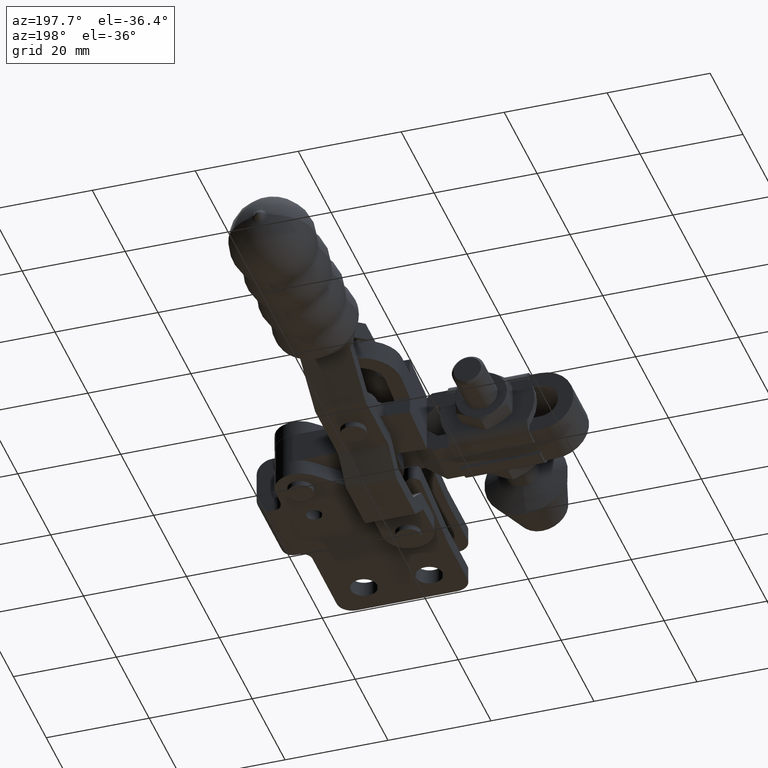
[diagram: clean part render]
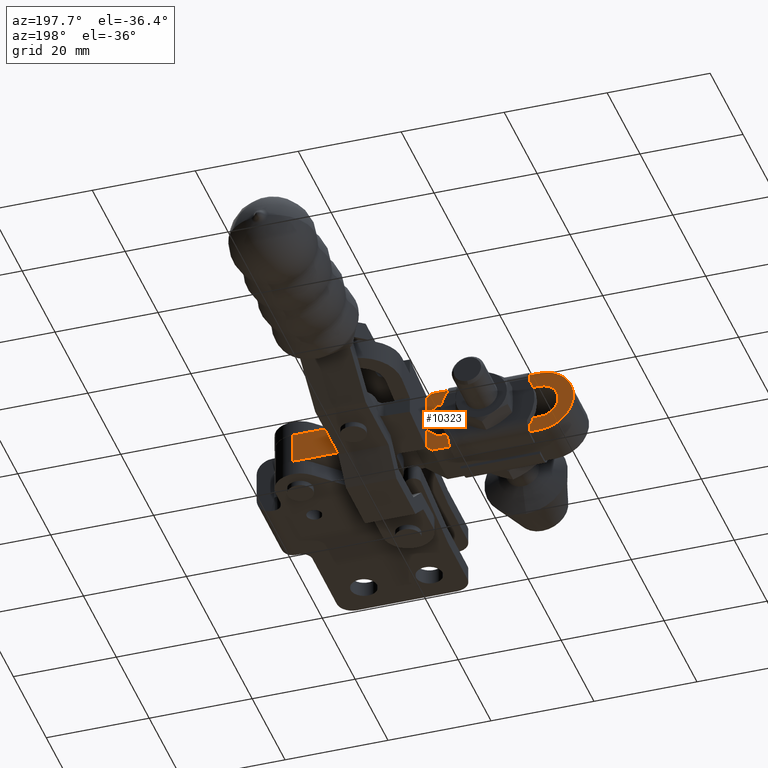
[diagram: same view with one face highlighted and labeled with its STEP entity id]
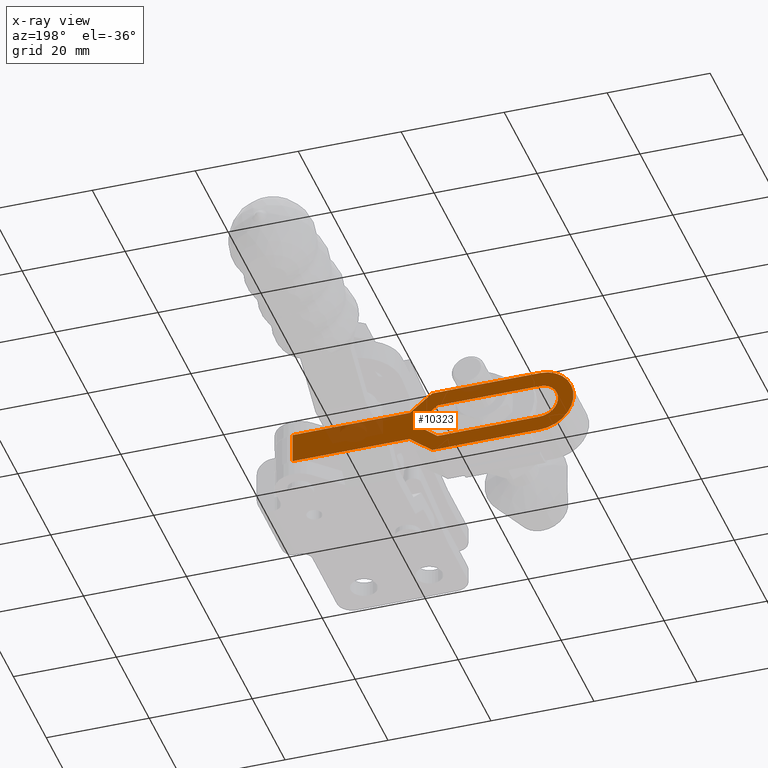
[diagram: x-ray of the same camera — body ghosted, the highlighted face saturated]
A machine part, auxiliary view. The second image highlights one B-rep face of the part: STEP entity #10323.
The next image is the same camera in x-ray: the body ghosted, the highlighted face saturated — about 14% of this face is hidden behind the body in this view.
In plain terms, the highlighted planar face has unit normal (0, -1, 0).
Its self-contained STEP definition (entity closure, byte-faithful):
#72 = AXIS2_PLACEMENT_3D ( 'NONE', #9359, #8436, #2339 ) ;
#370 = EDGE_CURVE ( 'NONE', #6557, #10199, #11198, .T. ) ;
#442 = ORIENTED_EDGE ( 'NONE', *, *, #7068, .T. ) ;
#461 = ORIENTED_EDGE ( 'NONE', *, *, #12910, .T. ) ;
#649 = ORIENTED_EDGE ( 'NONE', *, *, #9782, .F. ) ;
#692 = CARTESIAN_POINT ( 'NONE',  ( -4.499999999999476900, 32.20000000000007400, 2.999999999999969800 ) ) ;
#921 = VERTEX_POINT ( 'NONE', #4546 ) ;
#924 = LINE ( 'NONE', #4030, #6399 ) ;
#952 = VERTEX_POINT ( 'NONE', #8484 ) ;
#1001 = DIRECTION ( 'NONE',  ( -0.0000000000000000000, -0.0000000000000000000, -1.000000000000000000 ) ) ;
#1011 = VECTOR ( 'NONE', #1618, 1000.000000000000200 ) ;
#1087 = LINE ( 'NONE', #7999, #6253 ) ;
#1105 = LINE ( 'NONE', #8609, #11633 ) ;
#1150 = CARTESIAN_POINT ( 'NONE',  ( -31.59129135907610200, 32.20000000000007400, -6.500000000000109200 ) ) ;
#1177 = EDGE_CURVE ( 'NONE', #12643, #921, #7471, .T. ) ;
#1253 = ORIENTED_EDGE ( 'NONE', *, *, #11208, .F. ) ;
#1415 = ORIENTED_EDGE ( 'NONE', *, *, #12612, .F. ) ;
#1613 = CARTESIAN_POINT ( 'NONE',  ( -32.64999999999941600, 32.20000000000007400, 3.500000000000069700 ) ) ;
#1618 = DIRECTION ( 'NONE',  ( 0.7785042881960010400, 0.0000000000000000000, -0.6276392859441143300 ) ) ;
#1738 = CARTESIAN_POINT ( 'NONE',  ( -34.83422535211248300, 32.20000000000007400, -5.000000004330526700E-005 ) ) ;
#1805 = DIRECTION ( 'NONE',  ( 0.0000000000000000000, -1.000000000000000000, 0.0000000000000000000 ) ) ;
#1864 = LINE ( 'NONE', #3057, #4281 ) ;
#2045 = VERTEX_POINT ( 'NONE', #12949 ) ;
#2077 = VECTOR ( 'NONE', #12479, 1000.000000000000000 ) ;
#2246 = VECTOR ( 'NONE', #10574, 1000.000000000000000 ) ;
#2285 = AXIS2_PLACEMENT_3D ( 'NONE', #11387, #5337, #12380 ) ;
#2309 = CARTESIAN_POINT ( 'NONE',  ( -4.499999999999476900, 32.20000000000007400, 4.999999994946586800E-005 ) ) ;
#2339 = DIRECTION ( 'NONE',  ( 0.0000000000000000000, 0.0000000000000000000, 1.000000000000000000 ) ) ;
#2426 = LINE ( 'NONE', #3410, #2077 ) ;
#2503 = DIRECTION ( 'NONE',  ( -1.000000000000000000, -0.0000000000000000000, -0.0000000000000000000 ) ) ;
#2659 = CARTESIAN_POINT ( 'NONE',  ( -4.499999999999476900, 32.20000000000007400, -5.000000004330526700E-005 ) ) ;
#2671 = EDGE_CURVE ( 'NONE', #921, #6006, #11357, .T. ) ;
#2819 = LINE ( 'NONE', #7727, #1011 ) ;
#3008 = LINE ( 'NONE', #12539, #8413 ) ;
#3057 = CARTESIAN_POINT ( 'NONE',  ( -4.499999999999476900, 32.20000000000007400, 6.499999999999952000 ) ) ;
#3113 = LINE ( 'NONE', #1738, #8184 ) ;
#3127 = CARTESIAN_POINT ( 'NONE',  ( -27.24999999999974800, 32.20000000000007400, -3.000000000000064400 ) ) ;
#3335 = LINE ( 'NONE', #10727, #8741 ) ;
#3410 = CARTESIAN_POINT ( 'NONE',  ( -4.499999999999476900, 32.20000000000007400, 6.499999999999952000 ) ) ;
#3544 = VERTEX_POINT ( 'NONE', #11869 ) ;
#3787 = EDGE_CURVE ( 'NONE', #952, #13101, #2819, .T. ) ;
#3794 = DIRECTION ( 'NONE',  ( -1.000000000000000000, -0.0000000000000000000, -0.0000000000000000000 ) ) ;
#3892 = VERTEX_POINT ( 'NONE', #9309 ) ;
#3969 = EDGE_LOOP ( 'NONE', ( #12037, #4175, #7645, #9687, #10980, #461, #7532, #1415, #12022, #442, #11151, #649, #9915, #1253, #7826, #6412 ) ) ;
#4030 = CARTESIAN_POINT ( 'NONE',  ( -32.64999999999941600, 32.20000000000007400, 3.500000000000069700 ) ) ;
#4175 = ORIENTED_EDGE ( 'NONE', *, *, #12634, .F. ) ;
#4183 = CARTESIAN_POINT ( 'NONE',  ( -27.24999999999975100, 32.20000000000007400, 2.999999999999975600 ) ) ;
#4281 = VECTOR ( 'NONE', #1001, 1000.000000000000000 ) ;
#4546 = CARTESIAN_POINT ( 'NONE',  ( -32.64999999999941600, 32.20000000000007400, -3.499999999999986700 ) ) ;
#5337 = DIRECTION ( 'NONE',  ( 0.0000000000000000000, 1.000000000000000000, 0.0000000000000000000 ) ) ;
#5460 = EDGE_CURVE ( 'NONE', #10685, #3892, #2426, .T. ) ;
#5557 = EDGE_CURVE ( 'NONE', #3892, #3544, #7376, .T. ) ;
#5663 = AXIS2_PLACEMENT_3D ( 'NONE', #7945, #1805, #8956 ) ;
#6006 = VERTEX_POINT ( 'NONE', #12030 ) ;
#6253 = VECTOR ( 'NONE', #9010, 1000.000000000000000 ) ;
#6399 = VECTOR ( 'NONE', #11818, 1000.000000000000100 ) ;
#6412 = ORIENTED_EDGE ( 'NONE', *, *, #2671, .F. ) ;
#6539 = DIRECTION ( 'NONE',  ( -0.7785042881960009300, -0.0000000000000000000, -0.6276392859441143300 ) ) ;
#6557 = VERTEX_POINT ( 'NONE', #7489 ) ;
#6590 = DIRECTION ( 'NONE',  ( 1.000000000000000000, 0.0000000000000000000, -2.680936281055041100E-016 ) ) ;
#6593 = EDGE_CURVE ( 'NONE', #10666, #2045, #924, .T. ) ;
#6925 = CARTESIAN_POINT ( 'NONE',  ( -28.30877065937106400, 32.20000000000007400, -5.000000004330526700E-005 ) ) ;
#7068 = EDGE_CURVE ( 'NONE', #13101, #8614, #8128, .T. ) ;
#7091 = VERTEX_POINT ( 'NONE', #1150 ) ;
#7376 = LINE ( 'NONE', #3127, #2246 ) ;
#7471 = LINE ( 'NONE', #10664, #12497 ) ;
#7489 = CARTESIAN_POINT ( 'NONE',  ( -52.54999999999941500, 32.20000000000007400, -6.500000000000112800 ) ) ;
#7532 = ORIENTED_EDGE ( 'NONE', *, *, #370, .T. ) ;
#7645 = ORIENTED_EDGE ( 'NONE', *, *, #5460, .T. ) ;
#7727 = CARTESIAN_POINT ( 'NONE',  ( -31.59129135907613100, 32.20000000000007400, 6.500000000000040000 ) ) ;
#7826 = ORIENTED_EDGE ( 'NONE', *, *, #11551, .F. ) ;
#7924 = DIRECTION ( 'NONE',  ( -1.000000000000000000, -0.0000000000000000000, -0.0000000000000000000 ) ) ;
#7945 = CARTESIAN_POINT ( 'NONE',  ( -59.04999999999950000, 32.20000000000007400, 6.499999999999952000 ) ) ;
#7999 = CARTESIAN_POINT ( 'NONE',  ( -34.83422535211248300, 32.20000000000007400, 4.999999995696821500E-005 ) ) ;
#8122 = CARTESIAN_POINT ( 'NONE',  ( -52.54999999999941500, 32.20000000000007400, -3.499999999999996900 ) ) ;
#8128 = LINE ( 'NONE', #11591, #10146 ) ;
#8184 = VECTOR ( 'NONE', #7924, 1000.000000000000000 ) ;
#8413 = VECTOR ( 'NONE', #6539, 1000.000000000000300 ) ;
#8436 = DIRECTION ( 'NONE',  ( 0.0000000000000000000, 1.000000000000000000, 0.0000000000000000000 ) ) ;
#8484 = CARTESIAN_POINT ( 'NONE',  ( -31.59129135907613100, 32.20000000000007400, 6.500000000000040000 ) ) ;
#8609 = CARTESIAN_POINT ( 'NONE',  ( -59.04999999999950000, 32.20000000000007400, -6.500000000000047100 ) ) ;
#8614 = VERTEX_POINT ( 'NONE', #692 ) ;
#8682 = VECTOR ( 'NONE', #11363, 1000.000000000000000 ) ;
#8741 = VECTOR ( 'NONE', #9774, 1000.000000000000000 ) ;
#8850 = LINE ( 'NONE', #10867, #11201 ) ;
#8921 = DIRECTION ( 'NONE',  ( -0.7785042881960084800, -0.0000000000000000000, -0.6276392859441051200 ) ) ;
#8956 = DIRECTION ( 'NONE',  ( 0.0000000000000000000, -0.0000000000000000000, -1.000000000000000000 ) ) ;
#9010 = DIRECTION ( 'NONE',  ( 1.000000000000000000, 0.0000000000000000000, -2.473228926711883500E-016 ) ) ;
#9309 = CARTESIAN_POINT ( 'NONE',  ( -4.499999999999476900, 32.20000000000007400, -3.000000000000063900 ) ) ;
#9359 = CARTESIAN_POINT ( 'NONE',  ( -52.54999999999941500, 32.20000000000007400, 3.402667251023065300E-014 ) ) ;
#9534 = FACE_OUTER_BOUND ( 'NONE', #3969, .T. ) ;
#9663 = CARTESIAN_POINT ( 'NONE',  ( -52.54999999999941500, 32.20000000000007400, 6.500000000000040000 ) ) ;
#9687 = ORIENTED_EDGE ( 'NONE', *, *, #5557, .T. ) ;
#9774 = DIRECTION ( 'NONE',  ( 1.000000000000000000, 0.0000000000000000000, -1.133236441592888900E-015 ) ) ;
#9782 = EDGE_CURVE ( 'NONE', #2045, #13175, #1087, .T. ) ;
#9915 = ORIENTED_EDGE ( 'NONE', *, *, #6593, .F. ) ;
#10146 = VECTOR ( 'NONE', #6590, 1000.000000000000000 ) ;
#10199 = VERTEX_POINT ( 'NONE', #9663 ) ;
#10323 = ADVANCED_FACE ( 'NONE', ( #9534 ), #10884, .F. ) ;
#10530 = EDGE_CURVE ( 'NONE', #3544, #7091, #3008, .T. ) ;
#10574 = DIRECTION ( 'NONE',  ( -1.000000000000000000, -0.0000000000000000000, -1.577021341797083300E-017 ) ) ;
#10664 = CARTESIAN_POINT ( 'NONE',  ( -32.64999999999941600, 32.20000000000007400, -3.499999999999986700 ) ) ;
#10666 = VERTEX_POINT ( 'NONE', #1613 ) ;
#10685 = VERTEX_POINT ( 'NONE', #2659 ) ;
#10727 = CARTESIAN_POINT ( 'NONE',  ( -52.54999999999941500, 32.20000000000007400, 3.500000000000092400 ) ) ;
#10867 = CARTESIAN_POINT ( 'NONE',  ( -59.04999999999950000, 32.20000000000007400, 6.499999999999952000 ) ) ;
#10884 = PLANE ( 'NONE',  #5663 ) ;
#10980 = ORIENTED_EDGE ( 'NONE', *, *, #10530, .T. ) ;
#11151 = ORIENTED_EDGE ( 'NONE', *, *, #11441, .T. ) ;
#11198 = CIRCLE ( 'NONE', #72, 6.500000000000076400 ) ;
#11201 = VECTOR ( 'NONE', #3794, 1000.000000000000000 ) ;
#11208 = EDGE_CURVE ( 'NONE', #11909, #10666, #3335, .T. ) ;
#11357 = LINE ( 'NONE', #8122, #8682 ) ;
#11363 = DIRECTION ( 'NONE',  ( -1.000000000000000000, -0.0000000000000000000, -5.230322038121026200E-016 ) ) ;
#11387 = CARTESIAN_POINT ( 'NONE',  ( -52.54999999999941500, 32.20000000000007400, 3.402667251023065300E-014 ) ) ;
#11441 = EDGE_CURVE ( 'NONE', #8614, #13175, #1864, .T. ) ;
#11551 = EDGE_CURVE ( 'NONE', #6006, #11909, #11877, .T. ) ;
#11591 = CARTESIAN_POINT ( 'NONE',  ( -27.24999999999975100, 32.20000000000007400, 2.999999999999975600 ) ) ;
#11633 = VECTOR ( 'NONE', #2503, 1000.000000000000000 ) ;
#11818 = DIRECTION ( 'NONE',  ( 0.7785042881959933800, 0.0000000000000000000, -0.6276392859441238800 ) ) ;
#11869 = CARTESIAN_POINT ( 'NONE',  ( -27.24999999999974800, 32.20000000000007400, -3.000000000000064400 ) ) ;
#11877 = CIRCLE ( 'NONE', #2285, 3.500000000000044900 ) ;
#11909 = VERTEX_POINT ( 'NONE', #12066 ) ;
#12022 = ORIENTED_EDGE ( 'NONE', *, *, #3787, .T. ) ;
#12030 = CARTESIAN_POINT ( 'NONE',  ( -52.54999999999941500, 32.20000000000007400, -3.499999999999996900 ) ) ;
#12037 = ORIENTED_EDGE ( 'NONE', *, *, #1177, .F. ) ;
#12066 = CARTESIAN_POINT ( 'NONE',  ( -52.54999999999941500, 32.20000000000007400, 3.500000000000092400 ) ) ;
#12380 = DIRECTION ( 'NONE',  ( 0.0000000000000000000, 0.0000000000000000000, 1.000000000000000000 ) ) ;
#12479 = DIRECTION ( 'NONE',  ( -0.0000000000000000000, -0.0000000000000000000, -1.000000000000000000 ) ) ;
#12497 = VECTOR ( 'NONE', #8921, 1000.000000000000000 ) ;
#12539 = CARTESIAN_POINT ( 'NONE',  ( -31.59129135907610200, 32.20000000000007400, -6.500000000000109200 ) ) ;
#12612 = EDGE_CURVE ( 'NONE', #952, #10199, #8850, .T. ) ;
#12634 = EDGE_CURVE ( 'NONE', #10685, #12643, #3113, .T. ) ;
#12643 = VERTEX_POINT ( 'NONE', #6925 ) ;
#12910 = EDGE_CURVE ( 'NONE', #7091, #6557, #1105, .T. ) ;
#12949 = CARTESIAN_POINT ( 'NONE',  ( -28.30877065937106400, 32.20000000000007400, 4.999999995507706800E-005 ) ) ;
#13101 = VERTEX_POINT ( 'NONE', #4183 ) ;
#13175 = VERTEX_POINT ( 'NONE', #2309 ) ;